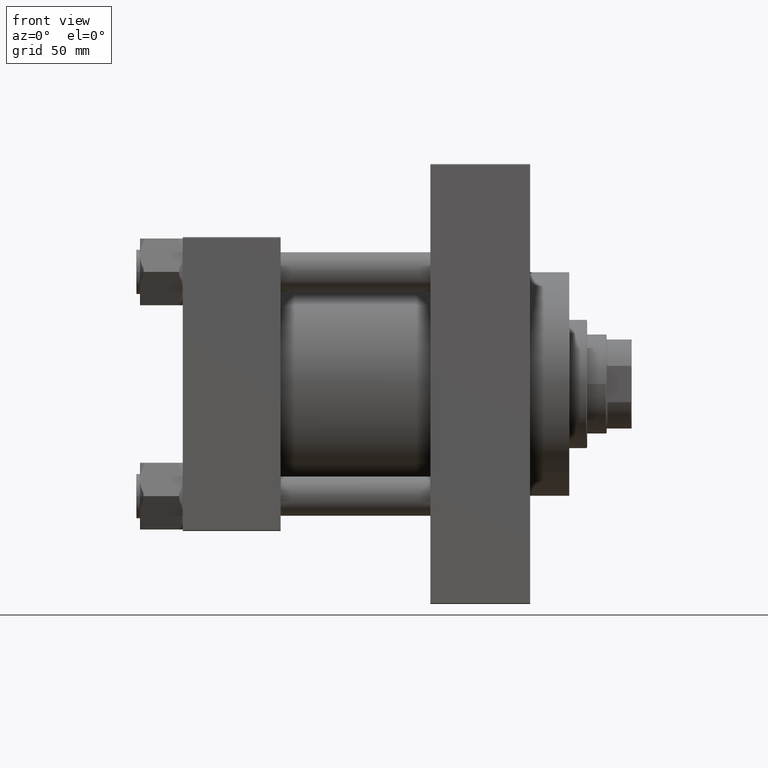
[diagram: clean part render]
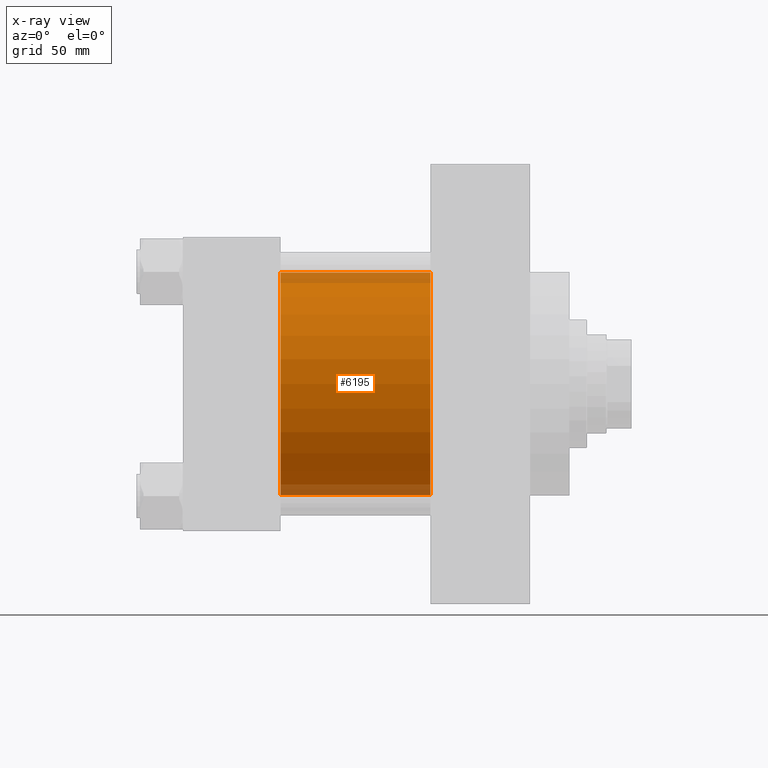
[diagram: x-ray — body ghosted, one internal face saturated and labeled with its STEP entity id]
A machine part, front view, then the same camera in x-ray: the body is ghosted and one INTERNAL B-rep face — a face not visible from any outside direction — is saturated and labeled: STEP entity #6195.
In plain terms, the highlighted cylindrical surface (partial cylindrical patch) has radius 62.5 mm, axis along (-1, -0, -0).
Its self-contained STEP definition (entity closure, byte-faithful):
#141 = LINE ( 'NONE', #23903, #38307 ) ;
#4418 = ORIENTED_EDGE ( 'NONE', *, *, #38215, .T. ) ;
#5927 = ORIENTED_EDGE ( 'NONE', *, *, #19305, .F. ) ;
#6195 = ADVANCED_FACE ( 'NONE', ( #48172 ), #48671, .F. ) ;
#7116 = CARTESIAN_POINT ( 'NONE',  ( 139.0000000000000000, -2.602085213965210642E-15, 0.000000000000000000 ) ) ;
#9032 = DIRECTION ( 'NONE',  ( 1.000000000000000000, 0.000000000000000000, 0.000000000000000000 ) ) ;
#9091 = LINE ( 'NONE', #21124, #9654 ) ;
#9654 = VECTOR ( 'NONE', #32626, 1000.000000000000000 ) ;
#12621 = DIRECTION ( 'NONE',  ( -1.000000000000000000, -0.000000000000000000, -0.000000000000000000 ) ) ;
#12934 = VERTEX_POINT ( 'NONE', #46637 ) ;
#14893 = DIRECTION ( 'NONE',  ( 1.000000000000000000, 0.000000000000000000, 0.000000000000000000 ) ) ;
#17399 = AXIS2_PLACEMENT_3D ( 'NONE', #49449, #14893, #19145 ) ;
#19145 = DIRECTION ( 'NONE',  ( 0.000000000000000000, 0.000000000000000000, -1.000000000000000000 ) ) ;
#19305 = EDGE_CURVE ( 'NONE', #12934, #34351, #42974, .T. ) ;
#20549 = DIRECTION ( 'NONE',  ( 0.000000000000000000, 0.000000000000000000, -1.000000000000000000 ) ) ;
#21124 = CARTESIAN_POINT ( 'NONE',  ( 139.0000000000000000, 5.051957280705745584E-15, -62.50000000000000000 ) ) ;
#22985 = VERTEX_POINT ( 'NONE', #31961 ) ;
#23519 = EDGE_CURVE ( 'NONE', #22985, #12934, #141, .T. ) ;
#23791 = ORIENTED_EDGE ( 'NONE', *, *, #42921, .T. ) ;
#23903 = CARTESIAN_POINT ( 'NONE',  ( 139.0000000000000000, -2.602085213965210642E-15, 62.50000000000000000 ) ) ;
#27419 = CIRCLE ( 'NONE', #34584, 62.50000000000000000 ) ;
#29263 = EDGE_LOOP ( 'NONE', ( #23791, #4418, #5927, #40267 ) ) ;
#31961 = CARTESIAN_POINT ( 'NONE',  ( 139.0000000000000000, -2.602085213965210642E-15, 62.50000000000000000 ) ) ;
#32626 = DIRECTION ( 'NONE',  ( -1.000000000000000000, -0.000000000000000000, -0.000000000000000000 ) ) ;
#34351 = VERTEX_POINT ( 'NONE', #48235 ) ;
#34584 = AXIS2_PLACEMENT_3D ( 'NONE', #44359, #9032, #20549 ) ;
#35061 = CARTESIAN_POINT ( 'NONE',  ( 139.0000000000000000, 5.051957280705745584E-15, -62.50000000000000000 ) ) ;
#38215 = EDGE_CURVE ( 'NONE', #47353, #34351, #9091, .T. ) ;
#38307 = VECTOR ( 'NONE', #12621, 1000.000000000000000 ) ;
#40267 = ORIENTED_EDGE ( 'NONE', *, *, #23519, .F. ) ;
#40427 = DIRECTION ( 'NONE',  ( 0.000000000000000000, 0.000000000000000000, 1.000000000000000000 ) ) ;
#42921 = EDGE_CURVE ( 'NONE', #22985, #47353, #27419, .T. ) ;
#42974 = CIRCLE ( 'NONE', #17399, 62.50000000000000000 ) ;
#44359 = CARTESIAN_POINT ( 'NONE',  ( 139.0000000000000000, -2.602085213965210642E-15, 0.000000000000000000 ) ) ;
#45412 = DIRECTION ( 'NONE',  ( -1.000000000000000000, -0.000000000000000000, -0.000000000000000000 ) ) ;
#46637 = CARTESIAN_POINT ( 'NONE',  ( 55.00000000000000000, -2.602085213965210642E-15, 62.50000000000000000 ) ) ;
#47353 = VERTEX_POINT ( 'NONE', #35061 ) ;
#48172 = FACE_OUTER_BOUND ( 'NONE', #29263, .T. ) ;
#48235 = CARTESIAN_POINT ( 'NONE',  ( 55.00000000000000000, 5.051957280705745584E-15, -62.50000000000000000 ) ) ;
#48247 = AXIS2_PLACEMENT_3D ( 'NONE', #7116, #45412, #40427 ) ;
#48671 = CYLINDRICAL_SURFACE ( 'NONE', #48247, 62.50000000000000000 ) ;
#49449 = CARTESIAN_POINT ( 'NONE',  ( 55.00000000000000000, -2.602085213965210642E-15, 0.000000000000000000 ) ) ;